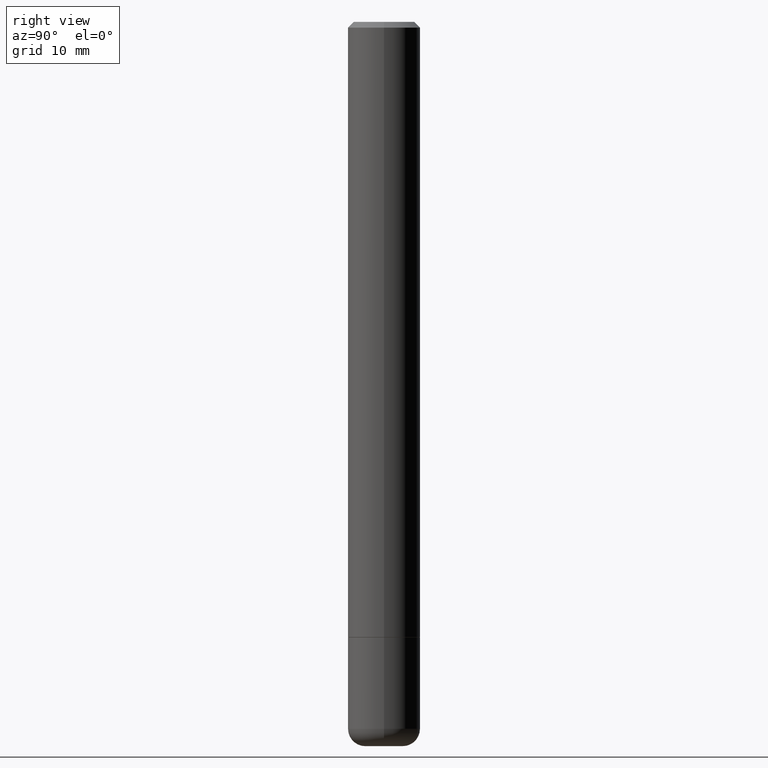
[diagram: clean part render]
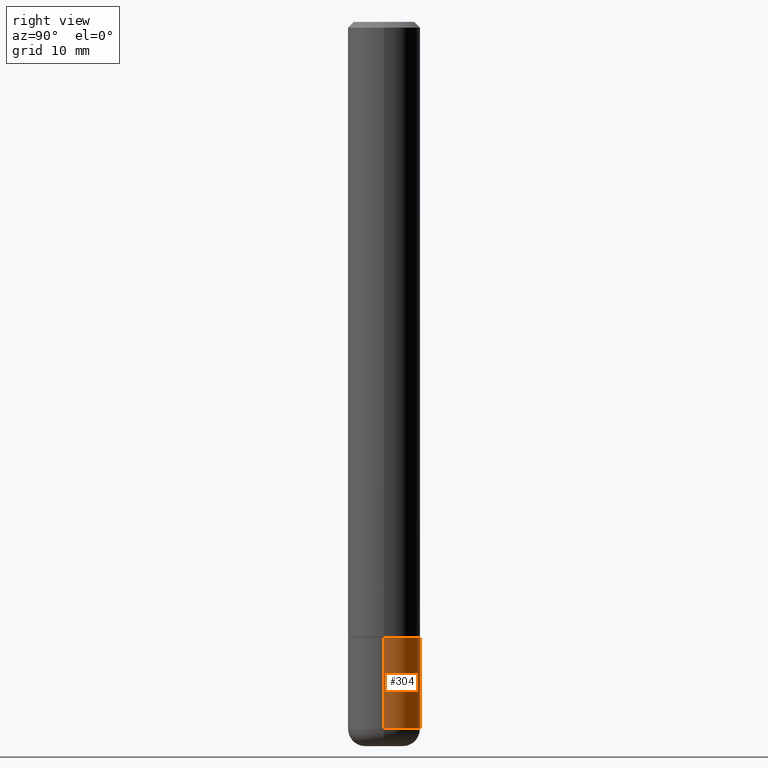
[diagram: same view with one face highlighted and labeled with its STEP entity id]
A machine part, right view. The second image highlights one B-rep face of the part: STEP entity #304.
In plain terms, the highlighted cylindrical surface (edge-blend (fillet) strip) has radius 3.175 mm, axis along (-0, 0, 1).
Its self-contained STEP definition (entity closure, byte-faithful):
#2 = EDGE_CURVE ( 'NONE', #109, #209, #35, .T. ) ;
#25 = CARTESIAN_POINT ( 'NONE',  ( -0.1249999999999998335, 8.881784197001240490E-16, -6.148668862818623819E-30 ) ) ;
#28 = CARTESIAN_POINT ( 'NONE',  ( 5.196621213143416389E-29, -7.419397845041685201E-15, -2.125000000000000444 ) ) ;
#34 = CIRCLE ( 'NONE', #323, 0.1249999999999996253 ) ;
#35 = LINE ( 'NONE', #226, #51 ) ;
#51 = VECTOR ( 'NONE', #185, 39.37007874015748143 ) ;
#65 = DIRECTION ( 'NONE',  ( 1.000000000000000000, -6.982962677686266711E-15, 4.876176775795935793E-29 ) ) ;
#68 = CARTESIAN_POINT ( 'NONE',  ( -0.1249999999999996253, -7.081131724556683478E-15, -2.125000000000000444 ) ) ;
#76 = ORIENTED_EDGE ( 'NONE', *, *, #392, .F. ) ;
#93 = CARTESIAN_POINT ( 'NONE',  ( 0.1249999999999996253, -8.292268179752466962E-15, -2.125000000000000444 ) ) ;
#97 = DIRECTION ( 'NONE',  ( -2.445468806185136597E-29, 3.491481338843145583E-15, 1.000000000000000000 ) ) ;
#109 = VERTEX_POINT ( 'NONE', #288 ) ;
#111 = DIRECTION ( 'NONE',  ( -2.445468806185136597E-29, 3.491481338843145583E-15, 1.000000000000000000 ) ) ;
#116 = DIRECTION ( 'NONE',  ( 1.000000000000000000, -6.982962677686269077E-15, 0.000000000000000000 ) ) ;
#132 = CYLINDRICAL_SURFACE ( 'NONE', #205, 0.1249999999999998335 ) ;
#137 = CARTESIAN_POINT ( 'NONE',  ( -0.1250000000000000278, -7.081131724556681111E-15, -2.440002284616149986 ) ) ;
#161 = CARTESIAN_POINT ( 'NONE',  ( 5.966949474049262823E-29, -8.519222443471929064E-15, -2.440002284616149986 ) ) ;
#166 = EDGE_CURVE ( 'NONE', #109, #381, #397, .T. ) ;
#173 = DIRECTION ( 'NONE',  ( -2.445468806185136877E-29, 3.491481338843145188E-15, 1.000000000000000000 ) ) ;
#185 = DIRECTION ( 'NONE',  ( -2.445468806185136877E-29, 3.491481338843145188E-15, 1.000000000000000000 ) ) ;
#205 = AXIS2_PLACEMENT_3D ( 'NONE', #357, #283, #65 ) ;
#209 = VERTEX_POINT ( 'NONE', #93 ) ;
#217 = ORIENTED_EDGE ( 'NONE', *, *, #2, .F. ) ;
#226 = CARTESIAN_POINT ( 'NONE',  ( 0.1249999999999998335, -8.728703347107821555E-16, 6.095220969744911333E-30 ) ) ;
#254 = VECTOR ( 'NONE', #173, 39.37007874015748143 ) ;
#275 = DIRECTION ( 'NONE',  ( 1.000000000000000000, -6.982962677686269077E-15, 0.000000000000000000 ) ) ;
#283 = DIRECTION ( 'NONE',  ( -2.445468806185136597E-29, 3.491481338843145583E-15, 1.000000000000000000 ) ) ;
#288 = CARTESIAN_POINT ( 'NONE',  ( 0.1250000000000000278, -9.392092778182712402E-15, -2.440002284616149986 ) ) ;
#293 = EDGE_LOOP ( 'NONE', ( #356, #311, #76, #217 ) ) ;
#297 = EDGE_CURVE ( 'NONE', #381, #334, #390, .T. ) ;
#304 = ADVANCED_FACE ( 'NONE', ( #393 ), #132, .T. ) ;
#311 = ORIENTED_EDGE ( 'NONE', *, *, #297, .T. ) ;
#323 = AXIS2_PLACEMENT_3D ( 'NONE', #28, #111, #116 ) ;
#334 = VERTEX_POINT ( 'NONE', #68 ) ;
#356 = ORIENTED_EDGE ( 'NONE', *, *, #166, .T. ) ;
#357 = CARTESIAN_POINT ( 'NONE',  ( 0.000000000000000000, 0.000000000000000000, 0.000000000000000000 ) ) ;
#373 = AXIS2_PLACEMENT_3D ( 'NONE', #161, #97, #275 ) ;
#381 = VERTEX_POINT ( 'NONE', #137 ) ;
#390 = LINE ( 'NONE', #25, #254 ) ;
#392 = EDGE_CURVE ( 'NONE', #209, #334, #34, .T. ) ;
#393 = FACE_OUTER_BOUND ( 'NONE', #293, .T. ) ;
#397 = CIRCLE ( 'NONE', #373, 0.1250000000000000278 ) ;